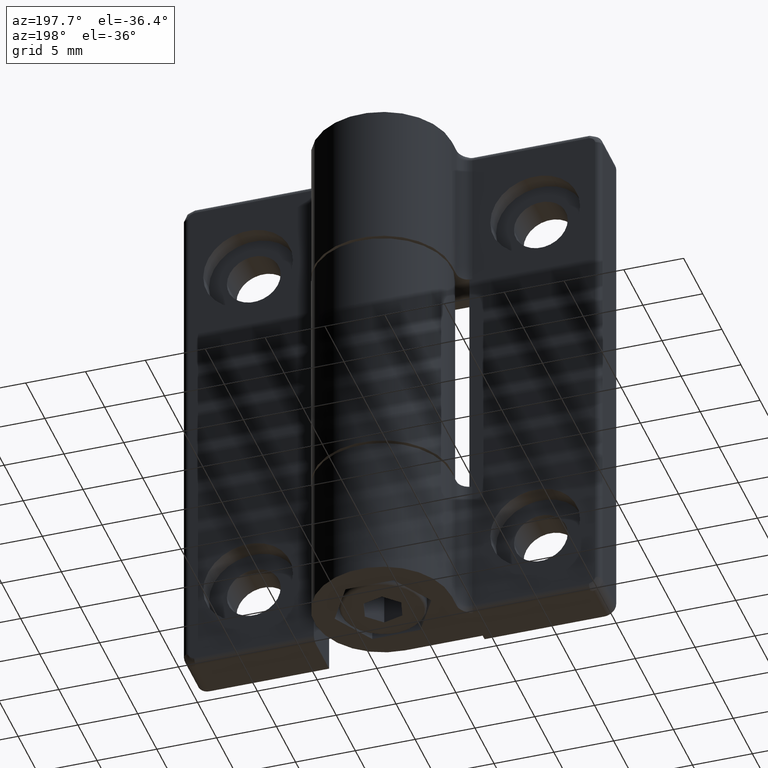
[diagram: clean part render]
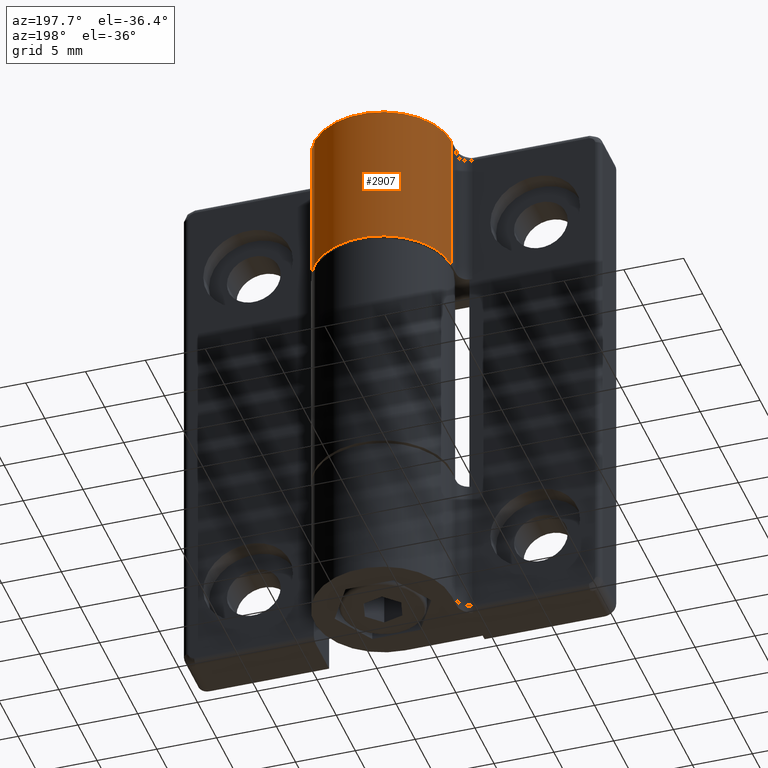
[diagram: same view with one face highlighted and labeled with its STEP entity id]
A machine part, auxiliary view. The second image highlights one B-rep face of the part: STEP entity #2907.
In plain terms, the highlighted cylindrical surface (partial cylindrical patch) has radius 5.75 mm, axis along (0, 0, -1).
Its self-contained STEP definition (entity closure, byte-faithful):
#419=FACE_OUTER_BOUND('',#537,.T.);
#537=EDGE_LOOP('',(#1968,#1969,#1970,#1971));
#697=LINE('',#3796,#851);
#700=LINE('',#3806,#854);
#851=VECTOR('',#3262,12.25);
#854=VECTOR('',#3273,12.25);
#998=CIRCLE('',#3034,5.75);
#1002=CIRCLE('',#3041,5.75);
#1082=VERTEX_POINT('',#3782);
#1083=VERTEX_POINT('',#3784);
#1087=VERTEX_POINT('',#3794);
#1090=VERTEX_POINT('',#3804);
#1476=EDGE_CURVE('',#1083,#1082,#998,.T.);
#1482=EDGE_CURVE('',#1082,#1087,#697,.T.);
#1486=EDGE_CURVE('',#1090,#1087,#1002,.T.);
#1487=EDGE_CURVE('',#1090,#1083,#700,.T.);
#1968=ORIENTED_EDGE('',*,*,#1476,.T.);
#1969=ORIENTED_EDGE('',*,*,#1482,.T.);
#1970=ORIENTED_EDGE('',*,*,#1486,.F.);
#1971=ORIENTED_EDGE('',*,*,#1487,.T.);
#2870=CYLINDRICAL_SURFACE('',#3040,5.75);
#2907=ADVANCED_FACE('',(#419),#2870,.T.);
#3034=AXIS2_PLACEMENT_3D('',#3785,#3251,#3252);
#3040=AXIS2_PLACEMENT_3D('',#3803,#3269,#3270);
#3041=AXIS2_PLACEMENT_3D('',#3805,#3271,#3272);
#3251=DIRECTION('center_axis',(0.,-1.,0.));
#3252=DIRECTION('ref_axis',(1.,0.,0.));
#3262=DIRECTION('',(0.,-1.,0.));
#3269=DIRECTION('center_axis',(0.,1.,0.));
#3270=DIRECTION('ref_axis',(1.,0.,0.));
#3271=DIRECTION('center_axis',(0.,-1.,0.));
#3272=DIRECTION('ref_axis',(1.,0.,0.));
#3273=DIRECTION('',(0.,1.,0.));
#3782=CARTESIAN_POINT('',(11.75,-10.25,6.25));
#3784=CARTESIAN_POINT('',(17.5,-10.25,0.500000000000003));
#3785=CARTESIAN_POINT('Origin',(17.5,-10.25,6.25));
#3794=CARTESIAN_POINT('',(11.75,-22.5,6.25));
#3796=CARTESIAN_POINT('',(11.75,0.,6.25));
#3803=CARTESIAN_POINT('Origin',(17.5,0.,6.25));
#3804=CARTESIAN_POINT('',(17.5,-22.5,0.500000000000003));
#3805=CARTESIAN_POINT('Origin',(17.5,-22.5,6.25));
#3806=CARTESIAN_POINT('',(17.5,0.,0.500000000000003));